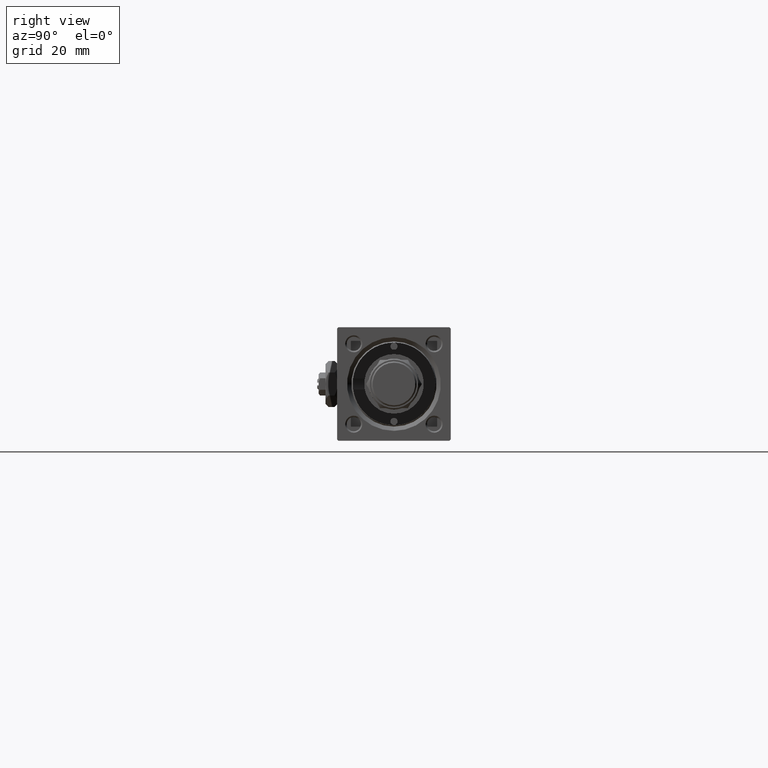
[diagram: clean part render]
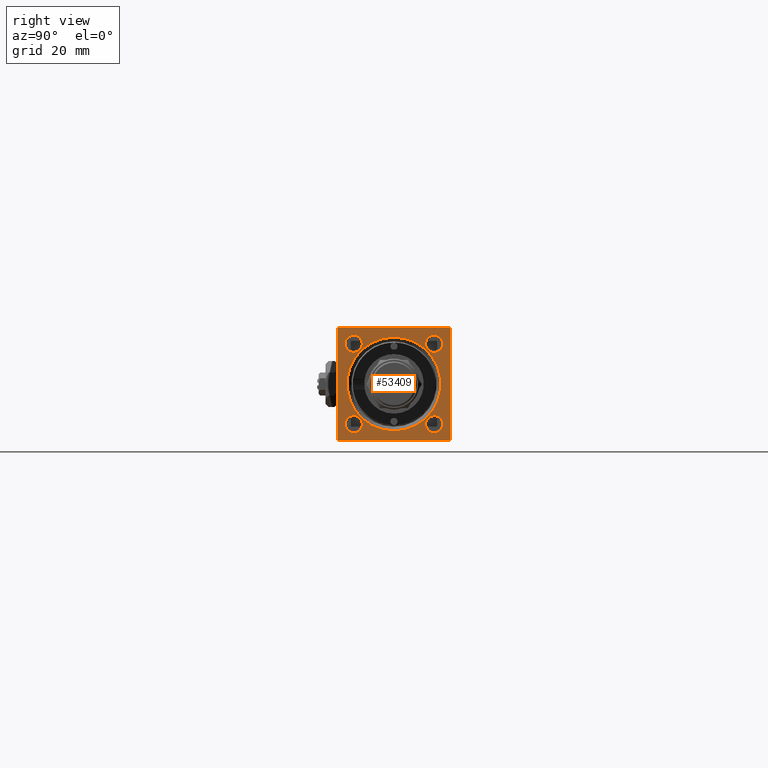
[diagram: same view with one face highlighted and labeled with its STEP entity id]
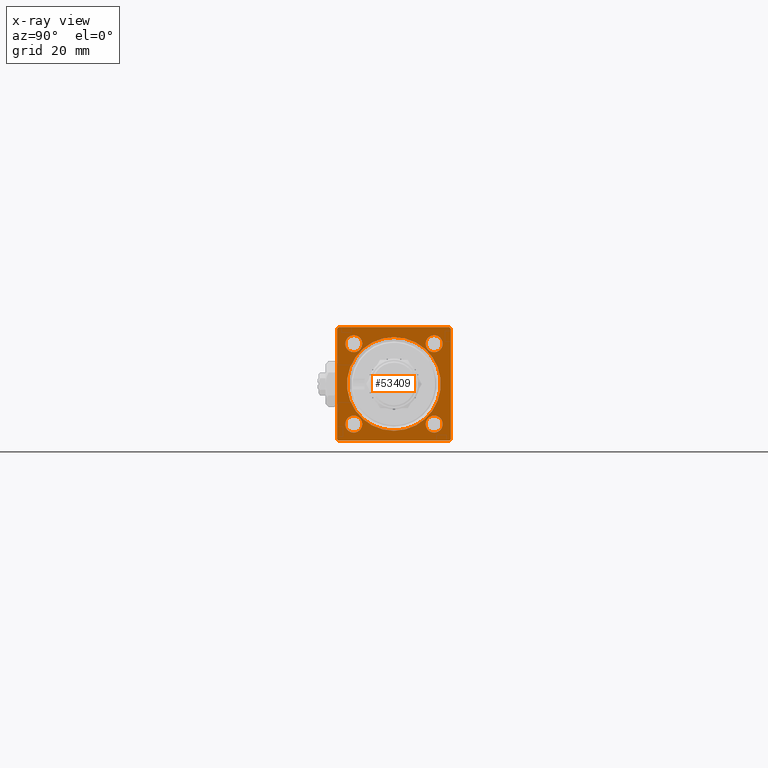
[diagram: x-ray of the same camera — body ghosted, the highlighted face saturated]
A machine part, right view. The second image highlights one B-rep face of the part: STEP entity #53409.
The next image is the same camera in x-ray: the body ghosted, the highlighted face saturated — about 0% of this face is hidden behind the body in this view.
In plain terms, the highlighted planar face has unit normal (-1, 0, 0).
Its self-contained STEP definition (entity closure, byte-faithful):
#120 = CARTESIAN_POINT ( 'NONE',  ( 199.0000000000000000, 19.50000000000002487, 20.00000000000000000 ) ) ;
#367 = VERTEX_POINT ( 'NONE', #12184 ) ;
#644 = EDGE_CURVE ( 'NONE', #24548, #12776, #39650, .T. ) ;
#923 = EDGE_CURVE ( 'NONE', #28613, #51796, #18835, .T. ) ;
#1053 = VERTEX_POINT ( 'NONE', #31404 ) ;
#1631 = LINE ( 'NONE', #18161, #44045 ) ;
#1769 = CIRCLE ( 'NONE', #1895, 2.999999999999917843 ) ;
#1895 = AXIS2_PLACEMENT_3D ( 'NONE', #52250, #31653, #48180 ) ;
#2792 = ORIENTED_EDGE ( 'NONE', *, *, #38901, .T. ) ;
#3135 = CARTESIAN_POINT ( 'NONE',  ( 199.0000000000000000, 2.020667218593127578E-15, 16.49999999999995737 ) ) ;
#3662 = CARTESIAN_POINT ( 'NONE',  ( 199.0000000000000000, -14.14999999999999680, 11.15000000000002522 ) ) ;
#3752 = VERTEX_POINT ( 'NONE', #3135 ) ;
#4192 = DIRECTION ( 'NONE',  ( -1.000000000000000000, -0.000000000000000000, -0.000000000000000000 ) ) ;
#4377 = LINE ( 'NONE', #20896, #12707 ) ;
#4702 = VERTEX_POINT ( 'NONE', #31085 ) ;
#4945 = ORIENTED_EDGE ( 'NONE', *, *, #923, .T. ) ;
#5715 = VERTEX_POINT ( 'NONE', #47023 ) ;
#5846 = AXIS2_PLACEMENT_3D ( 'NONE', #10895, #10363, #18482 ) ;
#6710 = DIRECTION ( 'NONE',  ( -1.000000000000000000, -0.000000000000000000, -0.000000000000000000 ) ) ;
#6766 = CIRCLE ( 'NONE', #10245, 2.999999999999976463 ) ;
#7130 = EDGE_CURVE ( 'NONE', #1053, #14178, #46273, .T. ) ;
#7174 = DIRECTION ( 'NONE',  ( -1.000000000000000000, -0.000000000000000000, -0.000000000000000000 ) ) ;
#7403 = EDGE_CURVE ( 'NONE', #1053, #17705, #29622, .T. ) ;
#7468 = ORIENTED_EDGE ( 'NONE', *, *, #52807, .T. ) ;
#7735 = CARTESIAN_POINT ( 'NONE',  ( 199.0000000000000000, -20.00000000000000000, -19.49999999999999645 ) ) ;
#8036 = LINE ( 'NONE', #23728, #53183 ) ;
#8577 = DIRECTION ( 'NONE',  ( 0.000000000000000000, 0.000000000000000000, 1.000000000000000000 ) ) ;
#8915 = EDGE_CURVE ( 'NONE', #12776, #24548, #1769, .T. ) ;
#8921 = EDGE_LOOP ( 'NONE', ( #31665, #33124 ) ) ;
#9364 = VECTOR ( 'NONE', #10983, 1000.000000000000000 ) ;
#9453 = EDGE_CURVE ( 'NONE', #3752, #32929, #12183, .T. ) ;
#9940 = EDGE_LOOP ( 'NONE', ( #2792, #16976 ) ) ;
#9977 = CIRCLE ( 'NONE', #40218, 2.999999999999976463 ) ;
#10245 = AXIS2_PLACEMENT_3D ( 'NONE', #17670, #34154, #42571 ) ;
#10363 = DIRECTION ( 'NONE',  ( -1.000000000000000000, -0.000000000000000000, -0.000000000000000000 ) ) ;
#10568 = ORIENTED_EDGE ( 'NONE', *, *, #24461, .T. ) ;
#10895 = CARTESIAN_POINT ( 'NONE',  ( 199.0000000000000000, 0.000000000000000000, 0.000000000000000000 ) ) ;
#10983 = DIRECTION ( 'NONE',  ( 0.000000000000000000, -1.000000000000000000, -8.673617379884035472E-17 ) ) ;
#11599 = VERTEX_POINT ( 'NONE', #3662 ) ;
#11879 = CARTESIAN_POINT ( 'NONE',  ( 199.0000000000000000, -20.00000000000000355, 19.50000000000002487 ) ) ;
#11895 = FACE_BOUND ( 'NONE', #50246, .T. ) ;
#12155 = EDGE_CURVE ( 'NONE', #51796, #4702, #33219, .T. ) ;
#12183 = CIRCLE ( 'NONE', #18208, 16.49999999999995737 ) ;
#12184 = CARTESIAN_POINT ( 'NONE',  ( 199.0000000000000000, -14.14999999999999680, 17.14999999999997726 ) ) ;
#12674 = DIRECTION ( 'NONE',  ( -0.000000000000000000, -0.7071067811865474617, -0.7071067811865474617 ) ) ;
#12707 = VECTOR ( 'NONE', #37401, 1000.000000000000114 ) ;
#12776 = VERTEX_POINT ( 'NONE', #30172 ) ;
#13163 = DIRECTION ( 'NONE',  ( -1.000000000000000000, -0.000000000000000000, -0.000000000000000000 ) ) ;
#14178 = VERTEX_POINT ( 'NONE', #33054 ) ;
#14370 = CARTESIAN_POINT ( 'NONE',  ( 199.0000000000000000, 14.14999999999999858, -17.14999999999997726 ) ) ;
#14516 = CIRCLE ( 'NONE', #23119, 2.999999999999976463 ) ;
#15504 = ORIENTED_EDGE ( 'NONE', *, *, #26576, .T. ) ;
#15982 = ORIENTED_EDGE ( 'NONE', *, *, #16572, .T. ) ;
#16572 = EDGE_CURVE ( 'NONE', #4702, #29583, #8036, .T. ) ;
#16854 = ORIENTED_EDGE ( 'NONE', *, *, #31550, .F. ) ;
#16976 = ORIENTED_EDGE ( 'NONE', *, *, #34592, .T. ) ;
#17003 = DIRECTION ( 'NONE',  ( 0.000000000000000000, 0.000000000000000000, 1.000000000000000000 ) ) ;
#17188 = CARTESIAN_POINT ( 'NONE',  ( 199.0000000000000000, 14.14999999999999858, 14.15000000000000036 ) ) ;
#17199 = DIRECTION ( 'NONE',  ( -1.000000000000000000, -0.000000000000000000, -0.000000000000000000 ) ) ;
#17670 = CARTESIAN_POINT ( 'NONE',  ( 199.0000000000000000, -14.14999999999999680, 14.15000000000000036 ) ) ;
#17705 = VERTEX_POINT ( 'NONE', #28797 ) ;
#17717 = DIRECTION ( 'NONE',  ( 0.000000000000000000, 0.000000000000000000, 1.000000000000000000 ) ) ;
#18161 = CARTESIAN_POINT ( 'NONE',  ( 199.0000000000000000, 19.99999999999999645, 20.00000000000000000 ) ) ;
#18208 = AXIS2_PLACEMENT_3D ( 'NONE', #49451, #13163, #8577 ) ;
#18258 = ORIENTED_EDGE ( 'NONE', *, *, #644, .T. ) ;
#18454 = CARTESIAN_POINT ( 'NONE',  ( 199.0000000000000000, 0.000000000000000000, -16.49999999999995737 ) ) ;
#18482 = DIRECTION ( 'NONE',  ( 0.000000000000000000, 0.000000000000000000, 1.000000000000000000 ) ) ;
#18835 = LINE ( 'NONE', #23949, #9364 ) ;
#19154 = AXIS2_PLACEMENT_3D ( 'NONE', #24194, #7174, #19880 ) ;
#19248 = VERTEX_POINT ( 'NONE', #44488 ) ;
#19679 = DIRECTION ( 'NONE',  ( 0.000000000000000000, 8.673617379884036705E-17, -1.000000000000000000 ) ) ;
#19880 = DIRECTION ( 'NONE',  ( 0.000000000000000000, 0.000000000000000000, 1.000000000000000000 ) ) ;
#20896 = CARTESIAN_POINT ( 'NONE',  ( 199.0000000000000000, 19.50000000000002487, 20.00000000000000000 ) ) ;
#21276 = ORIENTED_EDGE ( 'NONE', *, *, #7403, .T. ) ;
#21370 = DIRECTION ( 'NONE',  ( 0.000000000000000000, -1.000000000000000000, 0.000000000000000000 ) ) ;
#22223 = ORIENTED_EDGE ( 'NONE', *, *, #7130, .F. ) ;
#22882 = ORIENTED_EDGE ( 'NONE', *, *, #47765, .T. ) ;
#23119 = AXIS2_PLACEMENT_3D ( 'NONE', #17188, #4192, #17717 ) ;
#23221 = DIRECTION ( 'NONE',  ( 0.000000000000000000, 0.000000000000000000, 1.000000000000000000 ) ) ;
#23251 = CARTESIAN_POINT ( 'NONE',  ( 199.0000000000000000, 14.14999999999999858, -11.15000000000002700 ) ) ;
#23728 = CARTESIAN_POINT ( 'NONE',  ( 199.0000000000000000, -20.00000000000000355, 19.99999999999999645 ) ) ;
#23897 = EDGE_CURVE ( 'NONE', #32929, #3752, #39594, .T. ) ;
#23949 = CARTESIAN_POINT ( 'NONE',  ( 199.0000000000000000, 19.99999999999999645, 20.00000000000000000 ) ) ;
#24065 = FACE_BOUND ( 'NONE', #8921, .T. ) ;
#24194 = CARTESIAN_POINT ( 'NONE',  ( 199.0000000000000000, 14.14999999999999858, -14.15000000000000036 ) ) ;
#24461 = EDGE_CURVE ( 'NONE', #50872, #28613, #4377, .T. ) ;
#24548 = VERTEX_POINT ( 'NONE', #50393 ) ;
#24988 = DIRECTION ( 'NONE',  ( 0.000000000000000000, 0.7071067811865474617, -0.7071067811865474617 ) ) ;
#26576 = EDGE_CURVE ( 'NONE', #19248, #5715, #14516, .T. ) ;
#28393 = FACE_BOUND ( 'NONE', #9940, .T. ) ;
#28613 = VERTEX_POINT ( 'NONE', #120 ) ;
#28670 = ORIENTED_EDGE ( 'NONE', *, *, #8915, .T. ) ;
#28797 = CARTESIAN_POINT ( 'NONE',  ( 199.0000000000000000, 19.99999999999999645, -19.50000000000000000 ) ) ;
#28885 = EDGE_LOOP ( 'NONE', ( #15982, #22882, #22223, #21276, #16854, #10568, #4945, #46071 ) ) ;
#29583 = VERTEX_POINT ( 'NONE', #7735 ) ;
#29622 = LINE ( 'NONE', #46142, #51987 ) ;
#29702 = EDGE_LOOP ( 'NONE', ( #28670, #18258 ) ) ;
#29859 = EDGE_CURVE ( 'NONE', #367, #11599, #52669, .T. ) ;
#30160 = DIRECTION ( 'NONE',  ( 0.000000000000000000, 0.000000000000000000, 1.000000000000000000 ) ) ;
#30172 = CARTESIAN_POINT ( 'NONE',  ( 199.0000000000000000, -14.14999999999999503, -17.14999999999992397 ) ) ;
#31085 = CARTESIAN_POINT ( 'NONE',  ( 199.0000000000000000, -20.00000000000000355, 19.50000000000002487 ) ) ;
#31404 = CARTESIAN_POINT ( 'NONE',  ( 199.0000000000000000, 19.49999999999999645, -20.00000000000000000 ) ) ;
#31550 = EDGE_CURVE ( 'NONE', #50872, #17705, #1631, .T. ) ;
#31653 = DIRECTION ( 'NONE',  ( -1.000000000000000000, -0.000000000000000000, -0.000000000000000000 ) ) ;
#31665 = ORIENTED_EDGE ( 'NONE', *, *, #23897, .T. ) ;
#31841 = AXIS2_PLACEMENT_3D ( 'NONE', #51925, #6710, #23221 ) ;
#32140 = VECTOR ( 'NONE', #12674, 1000.000000000000114 ) ;
#32194 = DIRECTION ( 'NONE',  ( -0.000000000000000000, 0.000000000000000000, 1.000000000000000000 ) ) ;
#32462 = VERTEX_POINT ( 'NONE', #23251 ) ;
#32844 = LINE ( 'NONE', #49367, #34206 ) ;
#32929 = VERTEX_POINT ( 'NONE', #18454 ) ;
#33054 = CARTESIAN_POINT ( 'NONE',  ( 199.0000000000000000, -19.49999999999999645, -20.00000000000000000 ) ) ;
#33124 = ORIENTED_EDGE ( 'NONE', *, *, #9453, .T. ) ;
#33199 = ORIENTED_EDGE ( 'NONE', *, *, #46519, .T. ) ;
#33219 = LINE ( 'NONE', #11879, #32140 ) ;
#34154 = DIRECTION ( 'NONE',  ( -1.000000000000000000, -0.000000000000000000, -0.000000000000000000 ) ) ;
#34206 = VECTOR ( 'NONE', #24988, 1000.000000000000114 ) ;
#34592 = EDGE_CURVE ( 'NONE', #32462, #51631, #45042, .T. ) ;
#34647 = DIRECTION ( 'NONE',  ( 0.000000000000000000, 0.000000000000000000, -1.000000000000000000 ) ) ;
#34659 = CIRCLE ( 'NONE', #19154, 2.999999999999976463 ) ;
#34766 = DIRECTION ( 'NONE',  ( -1.000000000000000000, -0.000000000000000000, -0.000000000000000000 ) ) ;
#35708 = FACE_OUTER_BOUND ( 'NONE', #28885, .T. ) ;
#36673 = ORIENTED_EDGE ( 'NONE', *, *, #29859, .T. ) ;
#37401 = DIRECTION ( 'NONE',  ( 0.000000000000000000, -0.7071067811865474617, 0.7071067811865474617 ) ) ;
#38901 = EDGE_CURVE ( 'NONE', #51631, #32462, #34659, .T. ) ;
#39594 = CIRCLE ( 'NONE', #5846, 16.49999999999995737 ) ;
#39650 = CIRCLE ( 'NONE', #31841, 2.999999999999917843 ) ;
#40218 = AXIS2_PLACEMENT_3D ( 'NONE', #47220, #34766, #46147 ) ;
#40859 = CARTESIAN_POINT ( 'NONE',  ( 199.0000000000000000, 0.000000000000000000, 0.000000000000000000 ) ) ;
#41952 = CARTESIAN_POINT ( 'NONE',  ( 199.0000000000000000, 19.99999999999999645, -20.00000000000000000 ) ) ;
#42288 = AXIS2_PLACEMENT_3D ( 'NONE', #49754, #53568, #17003 ) ;
#42357 = DIRECTION ( 'NONE',  ( -0.000000000000000000, 0.7071067811865474617, 0.7071067811865474617 ) ) ;
#42571 = DIRECTION ( 'NONE',  ( 0.000000000000000000, 0.000000000000000000, 1.000000000000000000 ) ) ;
#43189 = CARTESIAN_POINT ( 'NONE',  ( 199.0000000000000000, 19.99999999999999645, 19.50000000000002842 ) ) ;
#44045 = VECTOR ( 'NONE', #34647, 1000.000000000000000 ) ;
#44391 = FACE_BOUND ( 'NONE', #46580, .T. ) ;
#44488 = CARTESIAN_POINT ( 'NONE',  ( 199.0000000000000000, 14.14999999999999858, 17.14999999999997726 ) ) ;
#44648 = DIRECTION ( 'NONE',  ( -1.000000000000000000, 0.000000000000000000, -0.000000000000000000 ) ) ;
#44917 = PLANE ( 'NONE',  #50850 ) ;
#45042 = CIRCLE ( 'NONE', #49365, 2.999999999999976463 ) ;
#45192 = CARTESIAN_POINT ( 'NONE',  ( 199.0000000000000000, -19.50000000000003197, 19.99999999999999645 ) ) ;
#46071 = ORIENTED_EDGE ( 'NONE', *, *, #12155, .T. ) ;
#46142 = CARTESIAN_POINT ( 'NONE',  ( 199.0000000000000000, 19.99999999999999645, -19.50000000000000000 ) ) ;
#46147 = DIRECTION ( 'NONE',  ( 0.000000000000000000, 0.000000000000000000, 1.000000000000000000 ) ) ;
#46273 = LINE ( 'NONE', #41952, #46793 ) ;
#46519 = EDGE_CURVE ( 'NONE', #5715, #19248, #9977, .T. ) ;
#46580 = EDGE_LOOP ( 'NONE', ( #33199, #15504 ) ) ;
#46793 = VECTOR ( 'NONE', #21370, 1000.000000000000000 ) ;
#47023 = CARTESIAN_POINT ( 'NONE',  ( 199.0000000000000000, 14.14999999999999858, 11.15000000000002522 ) ) ;
#47220 = CARTESIAN_POINT ( 'NONE',  ( 199.0000000000000000, 14.14999999999999858, 14.15000000000000036 ) ) ;
#47765 = EDGE_CURVE ( 'NONE', #29583, #14178, #32844, .T. ) ;
#48180 = DIRECTION ( 'NONE',  ( 0.000000000000000000, 0.000000000000000000, 1.000000000000000000 ) ) ;
#48972 = FACE_BOUND ( 'NONE', #29702, .T. ) ;
#49365 = AXIS2_PLACEMENT_3D ( 'NONE', #51022, #17199, #30160 ) ;
#49367 = CARTESIAN_POINT ( 'NONE',  ( 199.0000000000000000, -19.49999999999999645, -20.00000000000000000 ) ) ;
#49451 = CARTESIAN_POINT ( 'NONE',  ( 199.0000000000000000, 0.000000000000000000, 0.000000000000000000 ) ) ;
#49754 = CARTESIAN_POINT ( 'NONE',  ( 199.0000000000000000, -14.14999999999999680, 14.15000000000000036 ) ) ;
#50246 = EDGE_LOOP ( 'NONE', ( #7468, #36673 ) ) ;
#50393 = CARTESIAN_POINT ( 'NONE',  ( 199.0000000000000000, -14.14999999999999503, -11.15000000000008562 ) ) ;
#50850 = AXIS2_PLACEMENT_3D ( 'NONE', #40859, #44648, #32194 ) ;
#50872 = VERTEX_POINT ( 'NONE', #43189 ) ;
#51022 = CARTESIAN_POINT ( 'NONE',  ( 199.0000000000000000, 14.14999999999999858, -14.15000000000000036 ) ) ;
#51631 = VERTEX_POINT ( 'NONE', #14370 ) ;
#51796 = VERTEX_POINT ( 'NONE', #45192 ) ;
#51925 = CARTESIAN_POINT ( 'NONE',  ( 199.0000000000000000, -14.14999999999999503, -14.15000000000000391 ) ) ;
#51987 = VECTOR ( 'NONE', #42357, 1000.000000000000114 ) ;
#52250 = CARTESIAN_POINT ( 'NONE',  ( 199.0000000000000000, -14.14999999999999503, -14.15000000000000391 ) ) ;
#52669 = CIRCLE ( 'NONE', #42288, 2.999999999999976463 ) ;
#52807 = EDGE_CURVE ( 'NONE', #11599, #367, #6766, .T. ) ;
#53183 = VECTOR ( 'NONE', #19679, 1000.000000000000000 ) ;
#53409 = ADVANCED_FACE ( 'NONE', ( #44391, #11895, #48972, #28393, #24065, #35708 ), #44917, .F. ) ;
#53568 = DIRECTION ( 'NONE',  ( -1.000000000000000000, -0.000000000000000000, -0.000000000000000000 ) ) ;